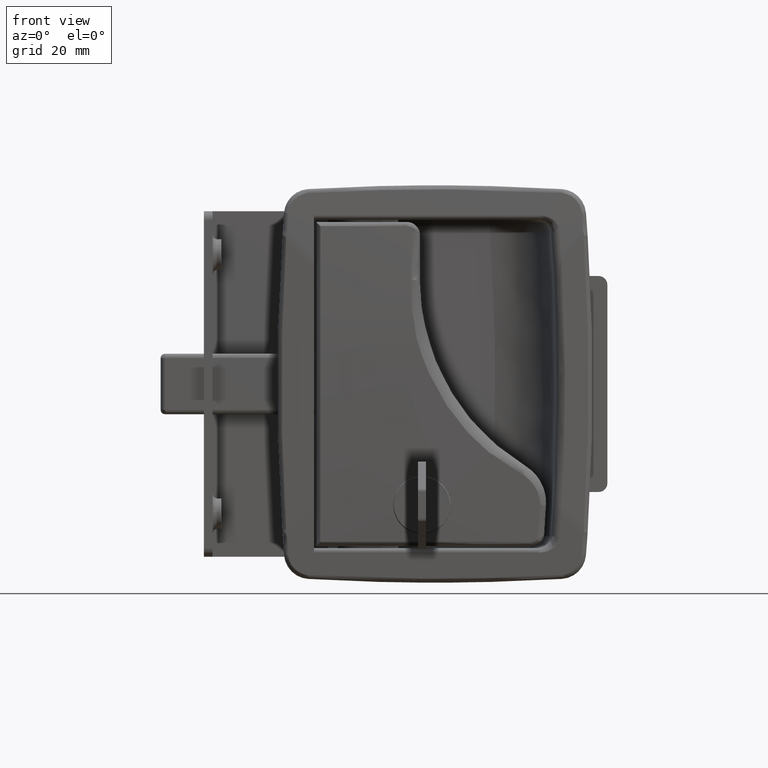
[diagram: clean part render]
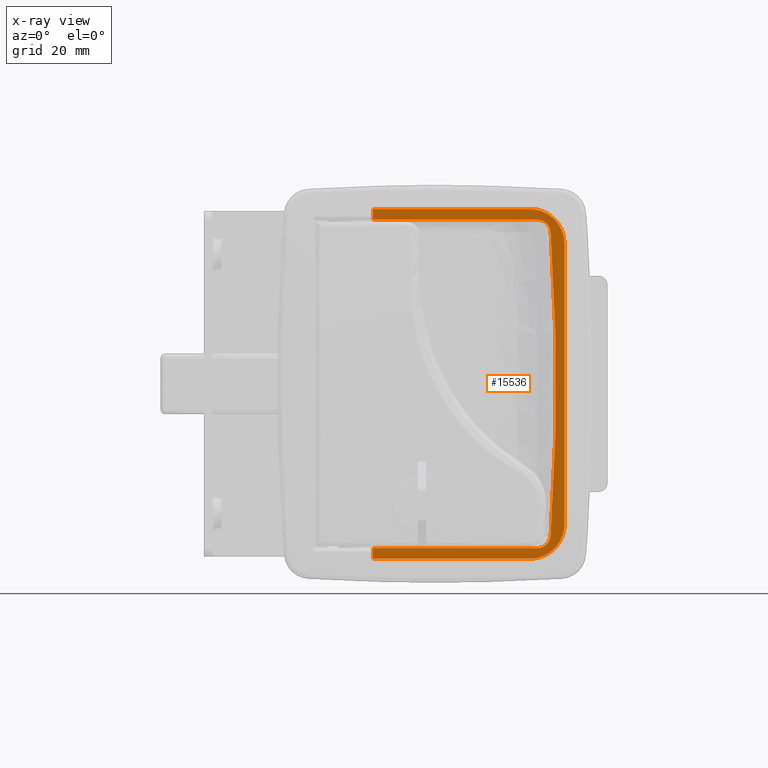
[diagram: x-ray — body ghosted, one internal face saturated and labeled with its STEP entity id]
A machine part, front view, then the same camera in x-ray: the body is ghosted and one INTERNAL B-rep face — a face not visible from any outside direction — is saturated and labeled: STEP entity #15536.
In plain terms, the highlighted face is a freeform B-spline surface patch.
Its self-contained STEP definition (entity closure, byte-faithful):
#13419=CARTESIAN_POINT('',(26.757146625076150,-28.996847994712599,-35.211285534042808));
#13420=VERTEX_POINT('',#13419);
#13454=CARTESIAN_POINT('',(23.764197311986450,-28.997077430102500,-38.0));
#13455=VERTEX_POINT('',#13454);
#13470=CARTESIAN_POINT('',(26.757146625076150,-28.996847994712599,-35.211285534042808));
#13471=CARTESIAN_POINT('',(26.737410371488640,-28.996849507666791,-35.491927818036700));
#13472=CARTESIAN_POINT('',(26.623107709948460,-28.996858269952050,-36.024350120477877));
#13473=CARTESIAN_POINT('',(26.229616933632752,-28.996888434415460,-36.778978352187487));
#13474=CARTESIAN_POINT('',(25.705588294595060,-28.996928605732339,-37.327950763548813));
#13475=CARTESIAN_POINT('',(25.088037028320141,-28.996975946365339,-37.717234739840897));
#13476=CARTESIAN_POINT('',(24.467504900900799,-28.997023515507351,-37.944819257038581));
#13477=CARTESIAN_POINT('',(23.998640187764920,-28.997059458033199,-38.000071914307412));
#13478=CARTESIAN_POINT('',(23.764197311986450,-28.997077430102500,-38.0));
#13479=B_SPLINE_CURVE_WITH_KNOTS('',3,(#13470,#13471,#13472,#13473,#13474,#13475,#13476,#13477,#13478),.UNSPECIFIED.,.F.,.U.,(4,1,1,1,1,1,4),(0.000000037031748,0.843999569651047,1.617683462292022,2.532013970091554,3.094683506645259,3.798045018552367,4.501371941260705),.UNSPECIFIED.);
#13480=EDGE_CURVE('',#13420,#13455,#13479,.T.);
#13716=CARTESIAN_POINT('',(23.764653348363449,-28.997077395161298,38.000200000000000));
#13717=VERTEX_POINT('',#13716);
#13748=CARTESIAN_POINT('',(26.757605413636451,-28.996847959536652,35.211446546487501));
#13749=VERTEX_POINT('',#13748);
#13767=CARTESIAN_POINT('',(23.764653348363449,-28.997077395161298,38.000200000000000));
#13768=CARTESIAN_POINT('',(23.999095973795399,-28.997059423109150,38.000268919369717));
#13769=CARTESIAN_POINT('',(24.444522246500469,-28.997025277338160,37.947784056387427));
#13770=CARTESIAN_POINT('',(25.044653370462999,-28.996979272104230,37.735619620621343));
#13771=CARTESIAN_POINT('',(25.529636095589151,-28.996942093989681,37.445468467200499));
#13772=CARTESIAN_POINT('',(25.938176823380619,-28.996910775814460,37.090777514017113));
#13773=CARTESIAN_POINT('',(26.338084540722559,-28.996880119434159,36.596478062028922));
#13774=CARTESIAN_POINT('',(26.644194942259080,-28.996856653428338,35.955530986680607));
#13775=CARTESIAN_POINT('',(26.741121899325272,-28.996849223140298,35.445304829747769));
#13776=CARTESIAN_POINT('',(26.757605413636451,-28.996847959536652,35.211446546487501));
#13777=B_SPLINE_CURVE_WITH_KNOTS('',3,(#13767,#13768,#13769,#13770,#13771,#13772,#13773,#13774,#13775,#13776),.UNSPECIFIED.,.F.,.U.,(4,1,1,1,1,1,1,4),(0.000000037037113,0.703331814332889,1.336363753252977,1.899039622669597,2.391376793069822,2.954045693891517,3.798087106822818,4.501421822942284),.UNSPECIFIED.);
#13778=EDGE_CURVE('',#13717,#13749,#13777,.T.);
#13898=CARTESIAN_POINT('',(26.757605413636451,-28.996847959536652,35.211446546487501));
#13899=CARTESIAN_POINT('',(27.171420992916040,-28.996816237007661,29.349880904721950));
#13900=CARTESIAN_POINT('',(27.481735724391960,-28.996792448705879,23.483753543294640));
#13901=CARTESIAN_POINT('',(27.792101145611792,-28.996768656518292,14.677726294604939));
#13902=CARTESIAN_POINT('',(27.869699149390339,-28.996762707961722,11.741244245115441));
#13903=CARTESIAN_POINT('',(27.947274270951102,-28.996756761159290,7.334810126423148));
#13904=CARTESIAN_POINT('',(27.966657612921900,-28.996755275258870,5.865891526238982));
#13905=CARTESIAN_POINT('',(27.992473101924361,-28.996753296278889,2.928661519278476));
#13906=CARTESIAN_POINT('',(27.998907529570609,-28.996752803024481,1.460228003788109));
#13907=CARTESIAN_POINT('',(27.998607440168261,-28.996752826028921,-11.754041643106460));
#13908=CARTESIAN_POINT('',(27.584909137570079,-28.996784539573511,-23.488468007145588));
#13909=CARTESIAN_POINT('',(26.757146625076292,-28.996847994712621,-35.211285534042808));
#13910=B_SPLINE_CURVE_WITH_KNOTS('',3,(#13898,#13899,#13900,#13901,#13902,#13903,#13904,#13905,#13906,#13907,#13908,#13909),.UNSPECIFIED.,.F.,.U.,(4,2,2,2,2,4),(0.0,0.250000000000000,0.375000000000000,0.437500000000000,0.500000000000000,1.0),.UNSPECIFIED.);
#13911=EDGE_CURVE('',#13749,#13420,#13910,.T.);
#15267=CARTESIAN_POINT('',(30.000783137987149,-28.996599341985451,32.500200000000000));
#15268=VERTEX_POINT('',#15267);
#15269=CARTESIAN_POINT('',(21.999715115965451,-28.997212692888301,40.500200000000000));
#15270=VERTEX_POINT('',#15269);
#15271=CARTESIAN_POINT('',(30.000783137987149,-28.996599341985451,32.500200000000000));
#15272=CARTESIAN_POINT('',(30.000814486369030,-28.996599339582328,32.991112392362652));
#15273=CARTESIAN_POINT('',(29.925160250490411,-28.996605139132331,33.809262958367327));
#15274=CARTESIAN_POINT('',(29.566703713107959,-28.996632617918952,35.240603447157639));
#15275=CARTESIAN_POINT('',(29.003663281411431,-28.996675779826290,36.469703489807507));
#15276=CARTESIAN_POINT('',(28.165157741475301,-28.996740058511332,37.644464996450630));
#15277=CARTESIAN_POINT('',(27.185460968092968,-28.996815160722360,38.660966811629692));
#15278=CARTESIAN_POINT('',(26.022048951151291,-28.996904346292300,39.469586841320101));
#15279=CARTESIAN_POINT('',(24.706067037532261,-28.997005227661202,40.062370648491743));
#15280=CARTESIAN_POINT('',(23.439705029905230,-28.997102305236190,40.412713538138512));
#15281=CARTESIAN_POINT('',(22.490622549568901,-28.997175060597499,40.500296134837853));
#15282=CARTESIAN_POINT('',(21.999715115965451,-28.997212692888301,40.500200000000000));
#15283=B_SPLINE_CURVE_WITH_KNOTS('',3,(#15271,#15272,#15273,#15274,#15275,#15276,#15277,#15278,#15279,#15280,#15281,#15282),.UNSPECIFIED.,.F.,.U.,(4,1,1,1,1,1,1,1,1,4),(0.000000081649191,1.472735572391287,2.454562768606365,4.418239872154123,5.498262845832806,6.774589631339806,8.640068282019890,9.720094009469667,11.094668635836999,12.567388644889890),.UNSPECIFIED.);
#15284=EDGE_CURVE('',#15268,#15270,#15283,.T.);
#15355=CARTESIAN_POINT('',(21.999715115965451,-28.997212692888301,-40.500000000000000));
#15356=VERTEX_POINT('',#15355);
#15357=CARTESIAN_POINT('',(30.000783137987149,-28.996599341985451,-32.500000000000000));
#15358=VERTEX_POINT('',#15357);
#15359=CARTESIAN_POINT('',(21.999715115965451,-28.997212692888301,-40.500000000000000));
#15360=CARTESIAN_POINT('',(22.817960587346359,-28.997149967312509,-40.500523446915793));
#15361=CARTESIAN_POINT('',(24.126789068715610,-28.997049634316060,-40.297518312664742));
#15362=CARTESIAN_POINT('',(25.762328227440751,-28.996924256126650,-39.608339361298668));
#15363=CARTESIAN_POINT('',(27.001424566255690,-28.996829268700619,-38.802344478682762));
#15364=CARTESIAN_POINT('',(28.192468172868850,-28.996737964931310,-37.668723049905083));
#15365=CARTESIAN_POINT('',(29.108485792952891,-28.996667744275950,-36.297914901485001));
#15366=CARTESIAN_POINT('',(29.815976803781229,-28.996613508985771,-34.528881518360379));
#15367=CARTESIAN_POINT('',(30.001103336537909,-28.996599317439621,-33.285507311867129));
#15368=CARTESIAN_POINT('',(30.000783137987149,-28.996599341985451,-32.500000000000000));
#15369=B_SPLINE_CURVE_WITH_KNOTS('',3,(#15359,#15360,#15361,#15362,#15363,#15364,#15365,#15366,#15367,#15368),.UNSPECIFIED.,.F.,.U.,(4,1,1,1,1,1,1,4),(0.000000081656063,2.454562257073288,3.927318297726986,5.301891636029630,6.872784620965609,8.836438208704166,10.211012597477080,12.567386025739030),.UNSPECIFIED.);
#15370=EDGE_CURVE('',#15356,#15358,#15369,.T.);
#15446=CARTESIAN_POINT('',(30.000783137987149,-28.996599341985451,32.500200000000000));
#15447=CARTESIAN_POINT('',(30.000783137987149,-28.996599341985451,-32.500000000000000));
#15448=QUASI_UNIFORM_CURVE('',1,(#15446,#15447),.UNSPECIFIED.,.F.,.U.);
#15449=EDGE_CURVE('',#15268,#15358,#15448,.T.);
#15485=CARTESIAN_POINT('',(32.216618910038001,-28.996429479053720,-44.545959543616291));
#15486=CARTESIAN_POINT('',(-16.576114595675239,-29.000169863095781,-44.545959543616291));
#15487=CARTESIAN_POINT('',(32.216618910038001,-28.996429479053720,44.546155922625189));
#15488=CARTESIAN_POINT('',(-16.576114595675239,-29.000169863095781,44.546155922625189));
#15489=B_SPLINE_SURFACE_WITH_KNOTS('',1,1,((#15485,#15487),(#15486,#15488)),.UNSPECIFIED.,.F.,.F.,.U.,(2,2),(2,2),(0.0,48.792733649079601),(0.0,89.092115466241481),.UNSPECIFIED.);
#15490=CARTESIAN_POINT('',(-14.360276684275300,-29.0,40.500200000000000));
#15491=VERTEX_POINT('',#15490);
#15492=CARTESIAN_POINT('',(-14.360278427005600,-29.000000000133600,38.000200000000000));
#15493=VERTEX_POINT('',#15492);
#15494=CARTESIAN_POINT('',(-14.360276684275300,-29.0,40.500200000000000));
#15495=CARTESIAN_POINT('',(-14.360278427005600,-29.000000000133600,38.000200000000000));
#15496=QUASI_UNIFORM_CURVE('',1,(#15494,#15495),.UNSPECIFIED.,.F.,.U.);
#15497=EDGE_CURVE('',#15491,#15493,#15496,.T.);
#15498=ORIENTED_EDGE('',*,*,#15497,.T.);
#15499=CARTESIAN_POINT('',(-14.360278427005600,-29.000000000133600,38.000200000000000));
#15500=CARTESIAN_POINT('',(23.764653348363449,-28.997077395161298,38.000200000000000));
#15501=QUASI_UNIFORM_CURVE('',1,(#15499,#15500),.UNSPECIFIED.,.F.,.U.);
#15502=EDGE_CURVE('',#15493,#13717,#15501,.T.);
#15503=ORIENTED_EDGE('',*,*,#15502,.T.);
#15504=ORIENTED_EDGE('',*,*,#13778,.T.);
#15505=ORIENTED_EDGE('',*,*,#13911,.T.);
#15506=ORIENTED_EDGE('',*,*,#13480,.T.);
#15507=CARTESIAN_POINT('',(-14.360278427005600,-29.000000000133600,-38.0));
#15508=VERTEX_POINT('',#15507);
#15509=CARTESIAN_POINT('',(23.764197311986450,-28.997077430102500,-38.0));
#15510=CARTESIAN_POINT('',(-14.360278427005600,-29.000000000133600,-38.0));
#15511=QUASI_UNIFORM_CURVE('',1,(#15509,#15510),.UNSPECIFIED.,.F.,.U.);
#15512=EDGE_CURVE('',#13455,#15508,#15511,.T.);
#15513=ORIENTED_EDGE('',*,*,#15512,.T.);
#15514=CARTESIAN_POINT('',(-14.360278427005600,-29.000000000066802,-40.500000000000000));
#15515=VERTEX_POINT('',#15514);
#15516=CARTESIAN_POINT('',(-14.360278427005600,-29.000000000133600,-38.0));
#15517=CARTESIAN_POINT('',(-14.360278427005600,-29.000000000066802,-40.500000000000000));
#15518=QUASI_UNIFORM_CURVE('',1,(#15516,#15517),.UNSPECIFIED.,.F.,.U.);
#15519=EDGE_CURVE('',#15508,#15515,#15518,.T.);
#15520=ORIENTED_EDGE('',*,*,#15519,.T.);
#15521=CARTESIAN_POINT('',(-14.360278427005600,-29.000000000066802,-40.500000000000000));
#15522=CARTESIAN_POINT('',(21.999715115965451,-28.997212692888301,-40.500000000000000));
#15523=QUASI_UNIFORM_CURVE('',1,(#15521,#15522),.UNSPECIFIED.,.F.,.U.);
#15524=EDGE_CURVE('',#15515,#15356,#15523,.T.);
#15525=ORIENTED_EDGE('',*,*,#15524,.T.);
#15526=ORIENTED_EDGE('',*,*,#15370,.T.);
#15527=ORIENTED_EDGE('',*,*,#15449,.F.);
#15528=ORIENTED_EDGE('',*,*,#15284,.T.);
#15529=CARTESIAN_POINT('',(-14.360276684275300,-29.0,40.500200000000000));
#15530=CARTESIAN_POINT('',(21.999715115965451,-28.997212692888301,40.500200000000000));
#15531=QUASI_UNIFORM_CURVE('',1,(#15529,#15530),.UNSPECIFIED.,.F.,.U.);
#15532=EDGE_CURVE('',#15491,#15270,#15531,.T.);
#15533=ORIENTED_EDGE('',*,*,#15532,.F.);
#15534=EDGE_LOOP('',(#15498,#15503,#15504,#15505,#15506,#15513,#15520,#15525,#15526,#15527,#15528,#15533));
#15535=FACE_OUTER_BOUND('',#15534,.T.);
#15536=ADVANCED_FACE('',(#15535),#15489,.F.);